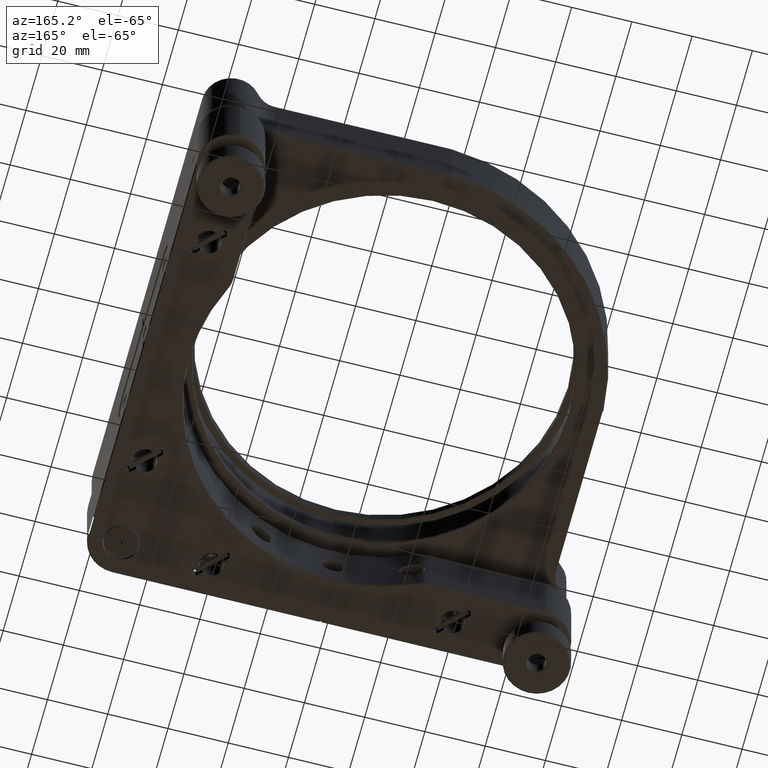
[diagram: clean part render]
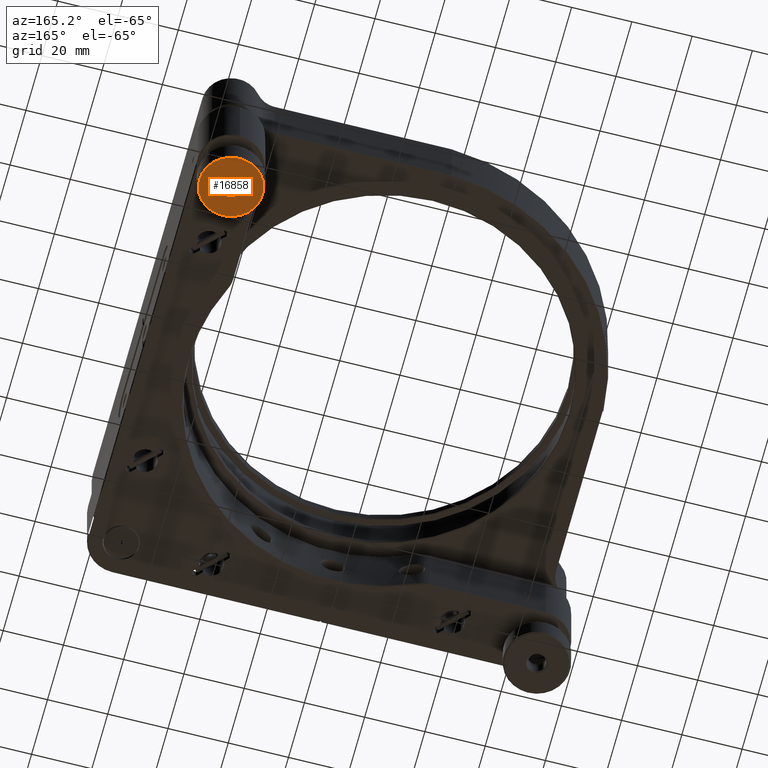
[diagram: same view with one face highlighted and labeled with its STEP entity id]
A machine part, auxiliary view. The second image highlights one B-rep face of the part: STEP entity #16858.
In plain terms, the highlighted planar face has unit normal (-0, 0, 1).
Its self-contained STEP definition (entity closure, byte-faithful):
#1 = ORIENTED_EDGE ( 'NONE', *, *, #12352, .T. ) ;
#381 = VERTEX_POINT ( 'NONE', #15458 ) ;
#2031 = ORIENTED_EDGE ( 'NONE', *, *, #13306, .T. ) ;
#2252 = ORIENTED_EDGE ( 'NONE', *, *, #4248, .T. ) ;
#2352 = EDGE_LOOP ( 'NONE', ( #2031, #1 ) ) ;
#2753 = CIRCLE ( 'NONE', #3852, 3.500000000000009770 ) ;
#3049 = CARTESIAN_POINT ( 'NONE',  ( 65.50017761900924995, 68.96473951905900890, -27.10050506338832221 ) ) ;
#3149 = CARTESIAN_POINT ( 'NONE',  ( 72.49982238099079268, 69.03526048094101952, -27.10050506338832221 ) ) ;
#3852 = AXIS2_PLACEMENT_3D ( 'NONE', #12798, #14022, #16625 ) ;
#4248 = EDGE_CURVE ( 'NONE', #12950, #9424, #2753, .T. ) ;
#4442 = AXIS2_PLACEMENT_3D ( 'NONE', #6327, #9256, #6416 ) ;
#4927 = AXIS2_PLACEMENT_3D ( 'NONE', #12895, #6352, #7812 ) ;
#5009 = DIRECTION ( 'NONE',  ( 0.9999492517116447265, 0.01007442312600126746, 0.000000000000000000 ) ) ;
#5439 = DIRECTION ( 'NONE',  ( 0.9999492517116447265, 0.01007442312600130736, 0.000000000000000000 ) ) ;
#6165 = AXIS2_PLACEMENT_3D ( 'NONE', #11989, #14506, #5439 ) ;
#6327 = CARTESIAN_POINT ( 'NONE',  ( 69.00000000000001421, 69.00000000000001421, -27.10050506338832221 ) ) ;
#6352 = DIRECTION ( 'NONE',  ( -9.708507162878871984E-50, 1.405738883550619146E-50, 1.000000000000000000 ) ) ;
#6366 = VERTEX_POINT ( 'NONE', #16078 ) ;
#6376 = CIRCLE ( 'NONE', #4442, 10.49999999999998757 ) ;
#6416 = DIRECTION ( 'NONE',  ( 0.9999492517116447265, 0.01007442312600130736, 0.000000000000000000 ) ) ;
#6564 = DIRECTION ( 'NONE',  ( -9.708507162879166347E-50, 1.405738883550616060E-50, 1.000000000000000000 ) ) ;
#7648 = PLANE ( 'NONE',  #4927 ) ;
#7812 = DIRECTION ( 'NONE',  ( 0.9999492517116448376, 0.01007442312600105062, 9.693852464440309898E-50 ) ) ;
#8643 = CIRCLE ( 'NONE', #6165, 10.49999999999998757 ) ;
#8859 = FACE_BOUND ( 'NONE', #11006, .T. ) ;
#8871 = ORIENTED_EDGE ( 'NONE', *, *, #15456, .T. ) ;
#9256 = DIRECTION ( 'NONE',  ( 9.708507162879166347E-50, -1.405738883550616060E-50, -1.000000000000000000 ) ) ;
#9424 = VERTEX_POINT ( 'NONE', #3049 ) ;
#11006 = EDGE_LOOP ( 'NONE', ( #8871, #2252 ) ) ;
#11811 = CARTESIAN_POINT ( 'NONE',  ( 69.00000000000001421, 69.00000000000001421, -27.10050506338832221 ) ) ;
#11989 = CARTESIAN_POINT ( 'NONE',  ( 69.00000000000001421, 69.00000000000001421, -27.10050506338832221 ) ) ;
#12352 = EDGE_CURVE ( 'NONE', #6366, #381, #8643, .T. ) ;
#12798 = CARTESIAN_POINT ( 'NONE',  ( 69.00000000000001421, 69.00000000000001421, -27.10050506338832221 ) ) ;
#12895 = CARTESIAN_POINT ( 'NONE',  ( 69.00000000000001421, 69.00000000000001421, -27.10050506338832221 ) ) ;
#12950 = VERTEX_POINT ( 'NONE', #3149 ) ;
#13306 = EDGE_CURVE ( 'NONE', #381, #6366, #6376, .T. ) ;
#13986 = CIRCLE ( 'NONE', #17030, 3.500000000000009770 ) ;
#14022 = DIRECTION ( 'NONE',  ( -9.708507162879166347E-50, 1.405738883550616060E-50, 1.000000000000000000 ) ) ;
#14208 = FACE_OUTER_BOUND ( 'NONE', #2352, .T. ) ;
#14506 = DIRECTION ( 'NONE',  ( 9.708507162879166347E-50, -1.405738883550616060E-50, -1.000000000000000000 ) ) ;
#15456 = EDGE_CURVE ( 'NONE', #9424, #12950, #13986, .T. ) ;
#15458 = CARTESIAN_POINT ( 'NONE',  ( 79.49946714297229278, 69.10578144282303015, -27.10050506338832221 ) ) ;
#16078 = CARTESIAN_POINT ( 'NONE',  ( 58.50053285702776407, 68.89421855717701249, -27.10050506338832221 ) ) ;
#16625 = DIRECTION ( 'NONE',  ( 0.9999492517116447265, 0.01007442312600126746, 0.000000000000000000 ) ) ;
#16858 = ADVANCED_FACE ( 'NONE', ( #8859, #14208 ), #7648, .F. ) ;
#17030 = AXIS2_PLACEMENT_3D ( 'NONE', #11811, #6564, #5009 ) ;